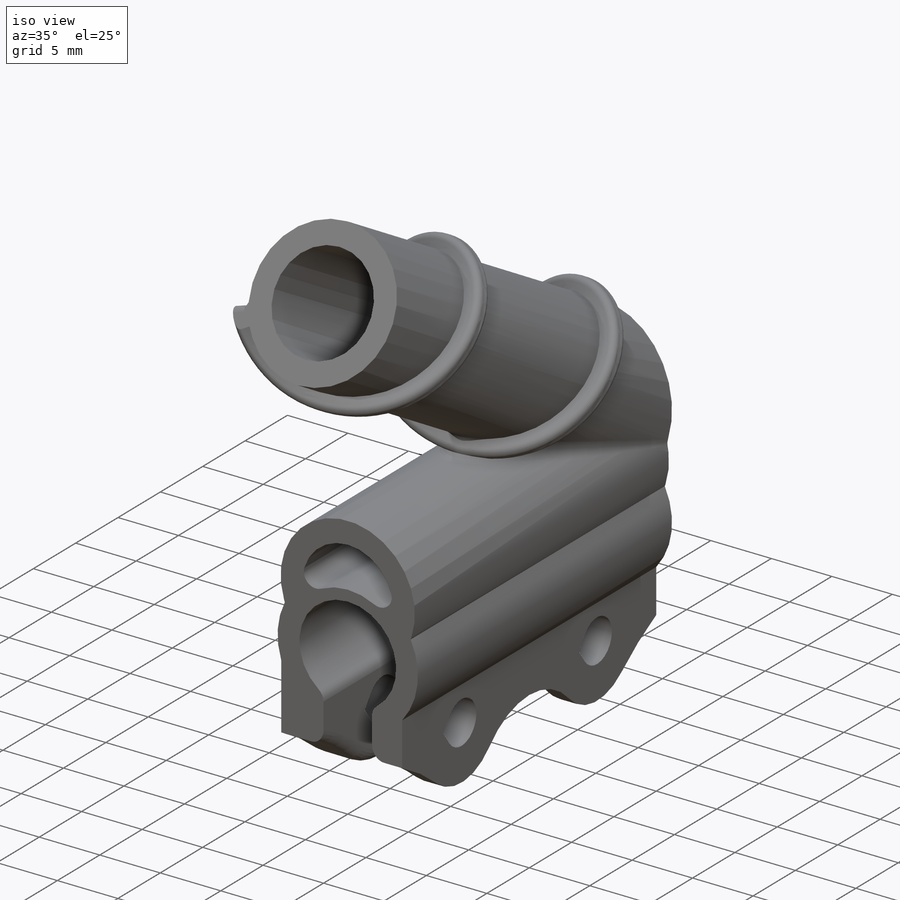
[diagram: iso view]
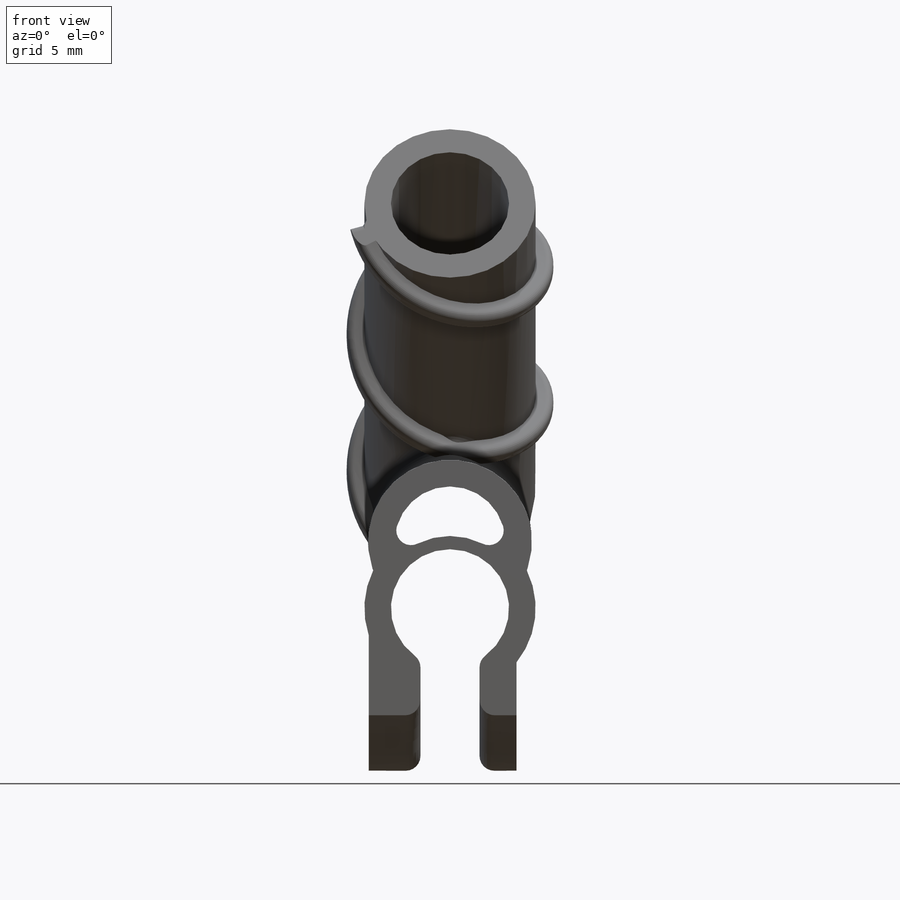
[diagram: front view]
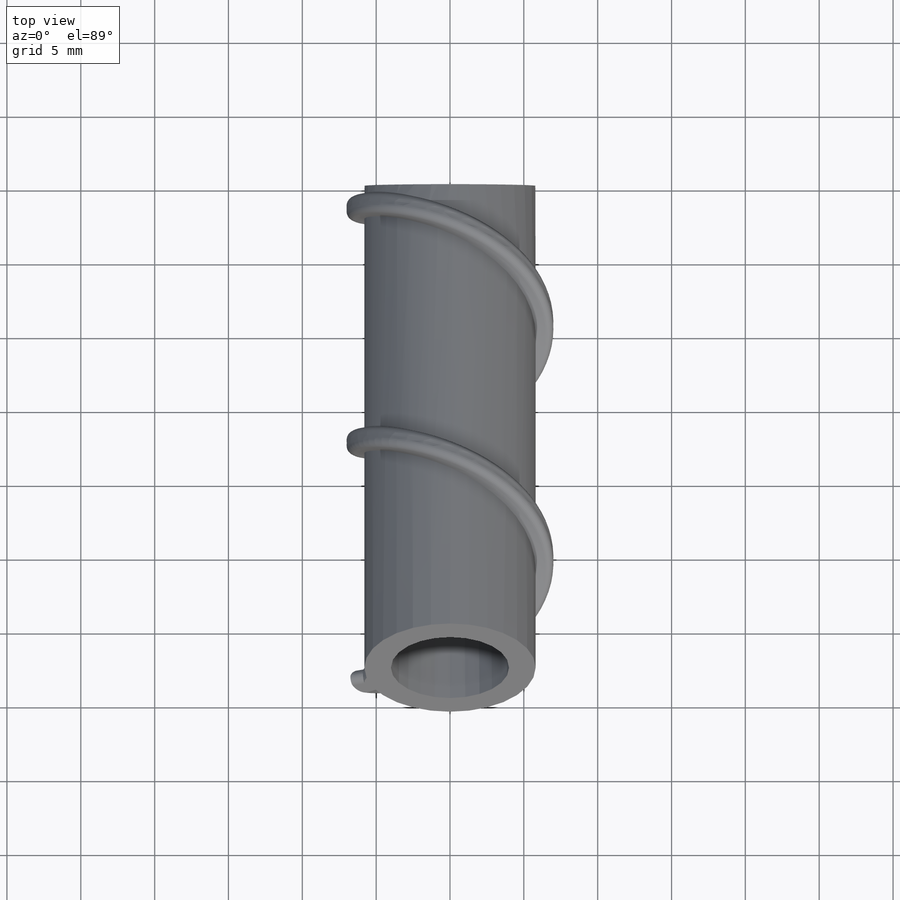
[diagram: top view]
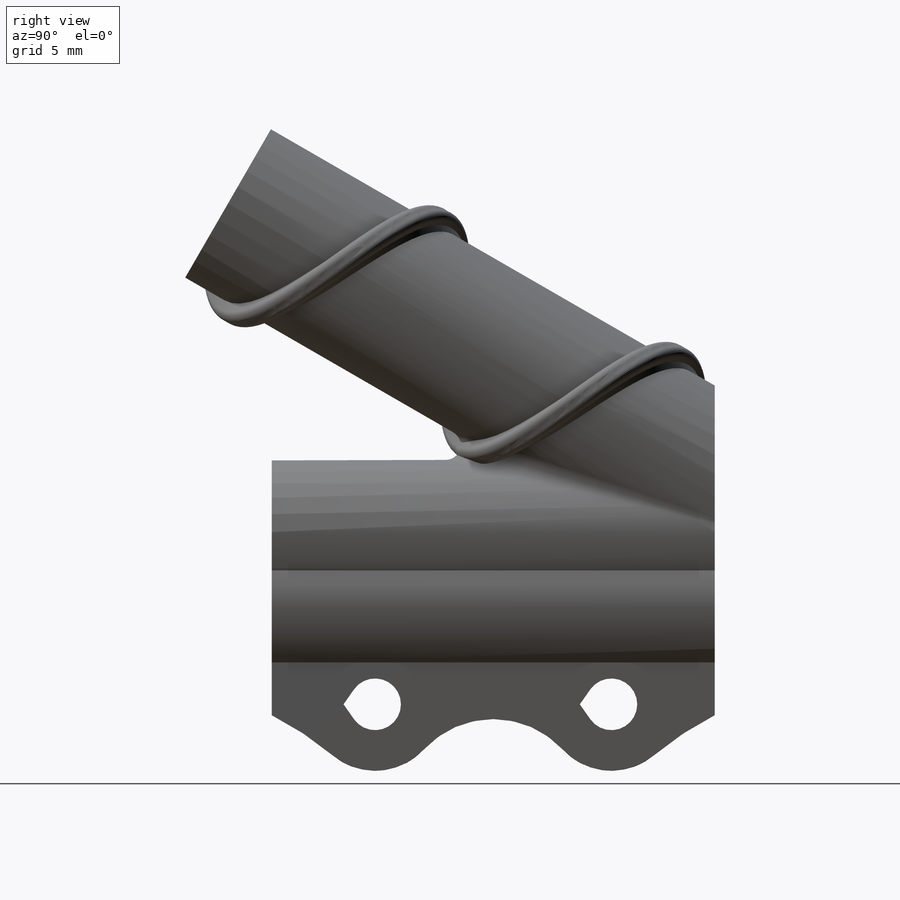
[diagram: right view]
SOLIDWORKS PART (.sldprt)
format: sldprt  version: not decoded by parser v0  size: 954,880 bytes
history: native  units: mm
features: sketch x14, cut_extrude x6, fillet x4, extrude x3, plane x2, material x1, helix x1, sweep x1, chamfer x1 (+11 scaffold rows collapsed)
feature tree (44):
  scaffold x11  (default folders/planes/origin — collapsed)
  material  "Material <not specified>"
  sketch  "Sketch1"  dims[c1.D1=~8.678395mm c1.D2=~1.049607mm c1.D3=3.5mm c2.D1=3.75mm c2.D4=4.0mm c2.D5=5.6mm c2.D2=~10.109185mm c3.D2=30.0deg c3.D3=4.5mm c3.D1=1.6mm c4.D2=1.8mm c4.D3=0.9mm c4.D4=1.6mm c4.D5=1.0mm c4.D6=1.5mm c4.D7=3.5mm c4.D8=3.5mm c4.D9=2.5mm c4.D1=1.0mm]
  extrude  "Boss-Extrude1"  Depth=30mm
  fillet  "Fillet1"  Radius=1mm
  sketch  "Sketch2"  dims[c1.D3=~1.394457mm c1.D4=1.5mm c2.D3=~6.061726mm c2.D6=~3.901264mm c3.D6=30.0deg c3.D7=30.0mm c4.D7=40.0deg c4.D4=~2.050111mm c5.D4=35.0deg c5.D1=7.0mm c5.D2=7.0mm c5.D3=3.5mm c6.D4=2.0mm c6.D5=1.0mm c6.D6=2.0mm c6.D7=1.0mm c7.D5=2.0]
  cut_extrude  "Cut-Extrude1"  [1 undecoded]
  sketch  "Sketch4"
  plane  "Plane2"
  sketch  "Sketch5"  dims[c1.D1=~5.180637mm c1.D2=8.0mm c2.D1=6.0mm c2.D2=5.5mm c3.D1=1.8mm]
  extrude  "Boss-Extrude3"  Depth=40mm
  sketch  "Sketch6"
  cut_extrude  "Cut-Extrude2"  [1 undecoded]
  sketch  "Sketch7"  dims[D1=0.0mm]
  cut_extrude  "Cut-Extrude3"  [1 undecoded]
  sketch  "Sketch8"
  cut_extrude  "Cut-Extrude4"  [1 undecoded]
  sketch  "Sketch9"  dims[c1.D1=~2.260171mm c2.D1=0.0deg]
  cut_extrude  "Cut-Extrude5"  Depth=0.25mm
  sketch  "Sketch3"  dims[D1=0.0mm D2=0.0mm D3=0.0mm]
  extrude  "Boss-Extrude2"  Depth=1mm
  fillet  "Fillet5"  Radius=1mm
  sketch  "Sketch12"  dims[D1=0.0mm]
  helix  "Helix/Spiral1"  Pitch=49.95mm
  sketch  "Sketch14"  dims[c1.D1=1.2mm c1.D2=1.6mm c2.D1=1.2mm c2.D2=1.6mm]
  sketch  "Sketch16"
  plane  "Plane3"
  sketch  "Sketch17"  dims[D1=1.2mm D2=1.6mm D3=1.2mm D4=1.6mm]
  sweep  "Sweep2"
  sketch  "Sketch15"
  cut_extrude  "Cut-Extrude6"  [1 undecoded]
  fillet  "Fillet9"  Radius=0.5mm
  chamfer  "Chamfer1"  Distance=0.32mm Angle=45deg
  fillet  "Fillet10"  Radius=1mm
decode coverage: 19 of 30 modeling features carry decoded parameters
note: ~ marks probable driven/reference dimensions
note: 5 parameter values undecoded
summary: no parameter record found for 5 features
note: suppression state not decoded; provenance and decode notes live in map.json
